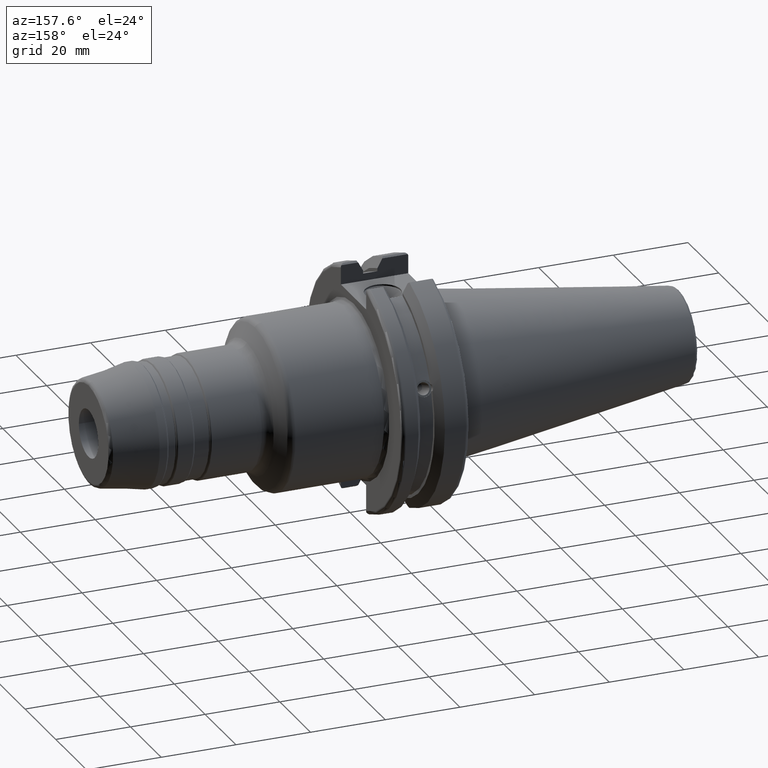
[diagram: clean part render]
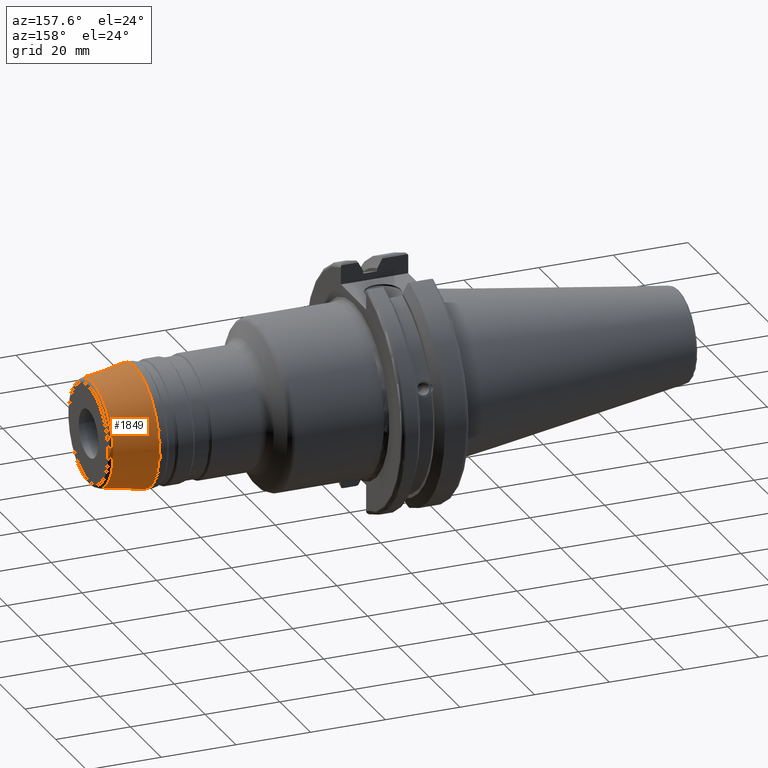
[diagram: same view with one face highlighted and labeled with its STEP entity id]
A machine part, auxiliary view. The second image highlights one B-rep face of the part: STEP entity #1849.
In plain terms, the highlighted conical surface has half-angle 10 deg.
Its self-contained STEP definition (entity closure, byte-faithful):
#179=LINE('',#2957,#272);
#272=VECTOR('',#2386,14.9);
#359=CONICAL_SURFACE('',#2036,14.9,0.174532925199432);
#395=FACE_OUTER_BOUND('',#501,.T.);
#501=EDGE_LOOP('',(#1351,#1352,#1353,#1354,#1355,#1356));
#656=CIRCLE('',#2034,13.9457081218349);
#657=CIRCLE('',#2035,13.9457081218349);
#658=CIRCLE('',#2037,15.9848077530122);
#659=CIRCLE('',#2038,15.9848077530122);
#776=VERTEX_POINT('',#2950);
#777=VERTEX_POINT('',#2952);
#778=VERTEX_POINT('',#2956);
#779=VERTEX_POINT('',#2958);
#993=EDGE_CURVE('',#776,#777,#656,.T.);
#994=EDGE_CURVE('',#777,#776,#657,.T.);
#995=EDGE_CURVE('',#777,#778,#179,.T.);
#996=EDGE_CURVE('',#779,#778,#658,.T.);
#997=EDGE_CURVE('',#778,#779,#659,.T.);
#1351=ORIENTED_EDGE('',*,*,#994,.F.);
#1352=ORIENTED_EDGE('',*,*,#995,.T.);
#1353=ORIENTED_EDGE('',*,*,#996,.F.);
#1354=ORIENTED_EDGE('',*,*,#997,.F.);
#1355=ORIENTED_EDGE('',*,*,#995,.F.);
#1356=ORIENTED_EDGE('',*,*,#993,.F.);
#1849=ADVANCED_FACE('',(#395),#359,.T.);
#2034=AXIS2_PLACEMENT_3D('',#2953,#2380,#2381);
#2035=AXIS2_PLACEMENT_3D('',#2954,#2382,#2383);
#2036=AXIS2_PLACEMENT_3D('',#2955,#2384,#2385);
#2037=AXIS2_PLACEMENT_3D('',#2959,#2387,#2388);
#2038=AXIS2_PLACEMENT_3D('',#2960,#2389,#2390);
#2380=DIRECTION('center_axis',(1.,0.,0.));
#2381=DIRECTION('ref_axis',(0.,-1.,3.06161699786838E-17));
#2382=DIRECTION('center_axis',(1.,0.,0.));
#2383=DIRECTION('ref_axis',(0.,-1.,3.06161699786838E-17));
#2384=DIRECTION('center_axis',(-1.,0.,0.));
#2385=DIRECTION('ref_axis',(0.,1.,0.));
#2386=DIRECTION('',(-0.984807753012208,-0.17364817766693,-2.12657684957576E-17));
#2387=DIRECTION('center_axis',(-1.,0.,0.));
#2388=DIRECTION('ref_axis',(0.,-1.,3.06161699786838E-17));
#2389=DIRECTION('center_axis',(-1.,0.,0.));
#2390=DIRECTION('ref_axis',(0.,-1.,3.06161699786838E-17));
#2950=CARTESIAN_POINT('',(89.1736481776669,-1.70785668132484E-15,13.9457081218349));
#2952=CARTESIAN_POINT('',(89.1736481776669,-13.9457081218349,-1.70785668132484E-15));
#2953=CARTESIAN_POINT('Origin',(89.1736481776669,0.,-2.13482085165605E-15));
#2954=CARTESIAN_POINT('Origin',(89.1736481776669,0.,-2.13482085165605E-15));
#2955=CARTESIAN_POINT('Origin',(83.7615899984205,0.,0.));
#2956=CARTESIAN_POINT('',(77.609339510982,-15.9848077530122,-1.95757436497122E-15));
#2957=CARTESIAN_POINT('',(83.7615899984205,-14.9,-1.82472373072956E-15));
#2958=CARTESIAN_POINT('',(77.609339510982,-1.95757436497122E-15,15.9848077530122));
#2959=CARTESIAN_POINT('Origin',(77.609339510982,0.,-2.44696795621402E-15));
#2960=CARTESIAN_POINT('Origin',(77.609339510982,0.,-2.44696795621402E-15));